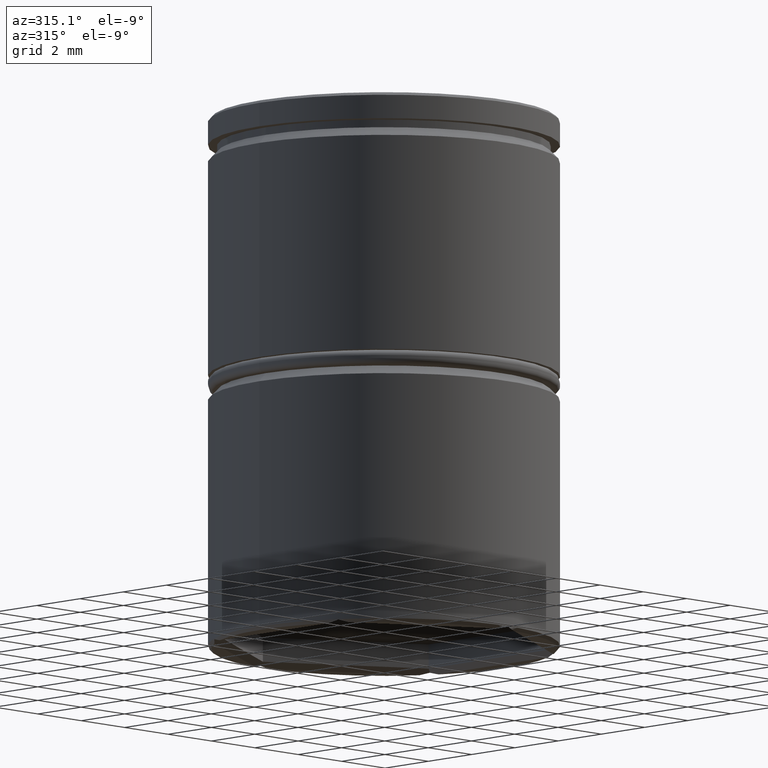
[diagram: clean part render]
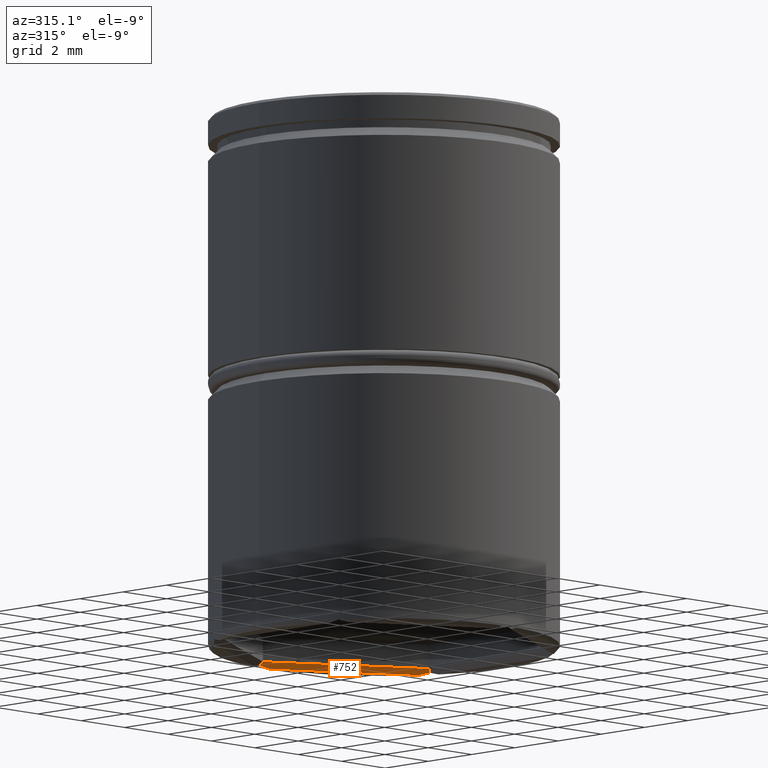
[diagram: same view with one face highlighted and labeled with its STEP entity id]
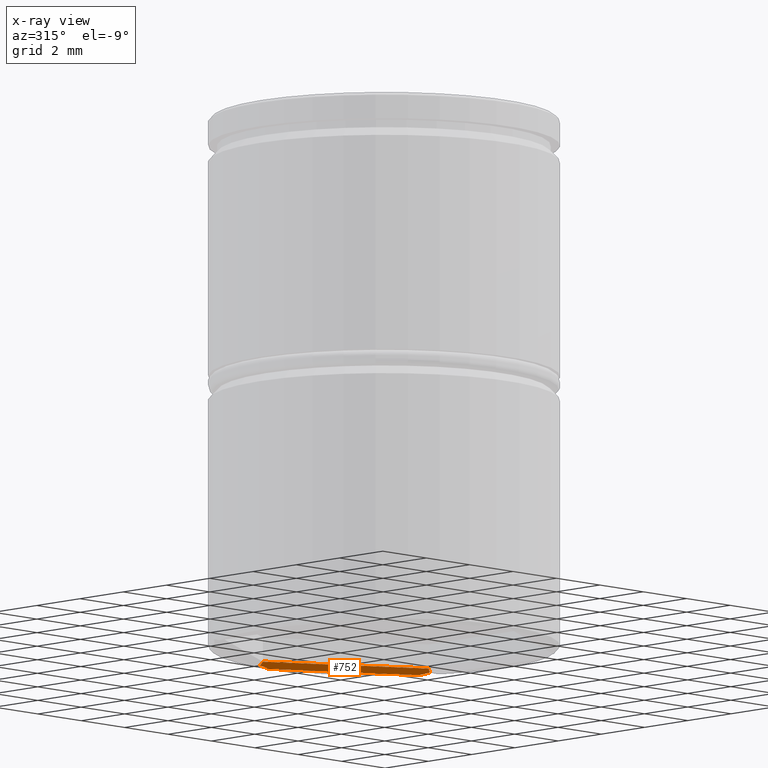
[diagram: x-ray of the same camera — body ghosted, the highlighted face saturated]
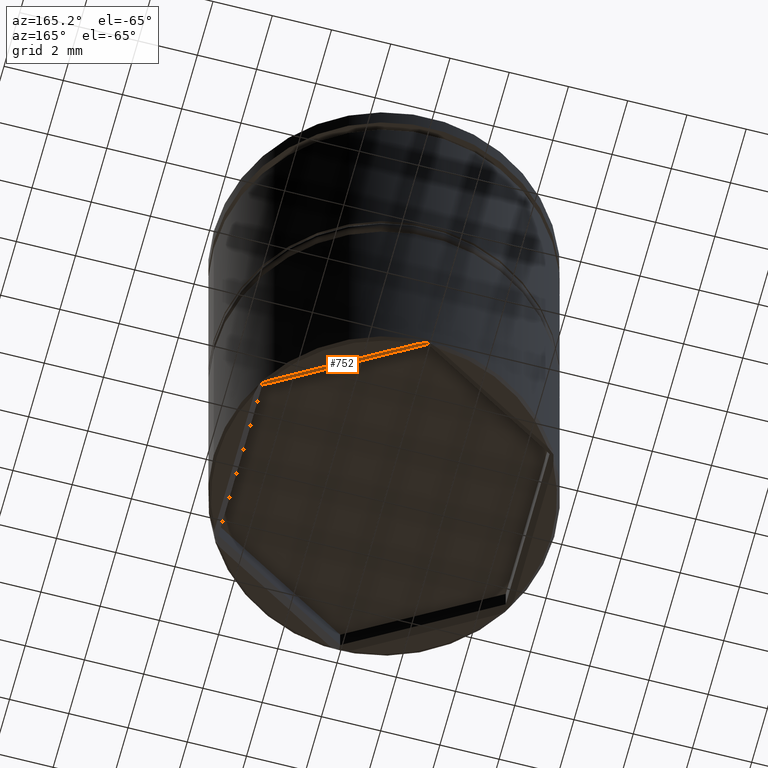
[diagram: same view with one face highlighted and labeled with its STEP entity id]
A machine part, auxiliary view. The second image highlights one B-rep face of the part: STEP entity #752.
The next image is the same camera in x-ray: the body ghosted, the highlighted face saturated — about 0% of this face is hidden behind the body in this view.
A second angle (auxiliary view) of the same face is appended — the face is thin or edge-on in the first view.
In plain terms, the highlighted planar face has unit normal (-0.3536, -0.6124, -0.7071).
Its self-contained STEP definition (entity closure, byte-faithful):
#11 = VECTOR ( 'NONE', #1179, 1000.000000000000114 ) ;
#19 = CARTESIAN_POINT ( 'NONE',  ( 4.885138570890573462, 2.947805070096408464, -17.44544336155335174 ) ) ;
#39 = CARTESIAN_POINT ( 'NONE',  ( 0.1103047906627722397, 5.704556638446649508, -17.44544336155335174 ) ) ;
#89 = VERTEX_POINT ( 'NONE', #720 ) ;
#110 = VERTEX_POINT ( 'NONE', #753 ) ;
#126 = DIRECTION ( 'NONE',  ( -0.3535533905932733423, -0.6123724356957940262, -0.7071067811865481278 ) ) ;
#146 = CARTESIAN_POINT ( 'NONE',  ( 4.965887281973972556, 2.867056359013010258, -17.41588728197397629 ) ) ;
#172 = VERTEX_POINT ( 'NONE', #211 ) ;
#186 = ORIENTED_EDGE ( 'NONE', *, *, #347, .F. ) ;
#192 = VECTOR ( 'NONE', #989, 1000.000000000000114 ) ;
#211 = CARTESIAN_POINT ( 'NONE',  ( 4.719310825749166050, 3.106542343179421906, -17.50000000000000000 ) ) ;
#214 = VERTEX_POINT ( 'NONE', #859 ) ;
#229 = VERTEX_POINT ( 'NONE', #549 ) ;
#252 = CARTESIAN_POINT ( 'NONE',  ( 0.2205779257049702291, 5.673302469441648732, -17.47351302474194767 ) ) ;
#292 = ORIENTED_EDGE ( 'NONE', *, *, #707, .F. ) ;
#293 = LINE ( 'NONE', #711, #1330 ) ;
#342 = ORIENTED_EDGE ( 'NONE', *, *, #583, .T. ) ;
#345 = CARTESIAN_POINT ( 'NONE',  ( 4.719310825749166050, 3.106542343179421906, -17.50000000000000000 ) ) ;
#347 = EDGE_CURVE ( 'NONE', #172, #110, #567, .T. ) ;
#362 = CARTESIAN_POINT ( 'NONE',  ( 0.3306891742508298315, 5.640314235043404345, -17.50000000000000000 ) ) ;
#366 = EDGE_CURVE ( 'NONE', #714, #89, #767, .T. ) ;
#373 = EDGE_CURVE ( 'NONE', #110, #229, #1370, .T. ) ;
#388 = CARTESIAN_POINT ( 'NONE',  ( 8.076211051402311635E-16, 5.734112718026022293, -17.41588728197397629 ) ) ;
#408 = DIRECTION ( 'NONE',  ( 2.542330217763760374E-15, 0.7559289460184543952, -0.6546536707079771977 ) ) ;
#474 = EDGE_LOOP ( 'NONE', ( #186, #844, #292, #777, #342, #1277 ) ) ;
#489 = VECTOR ( 'NONE', #899, 1000.000000000000000 ) ;
#534 = AXIS2_PLACEMENT_3D ( 'NONE', #1077, #126, #557 ) ;
#549 = CARTESIAN_POINT ( 'NONE',  ( 8.076211051402311635E-16, 5.734112718026022293, -17.41588728197397629 ) ) ;
#557 = DIRECTION ( 'NONE',  ( -0.8660254037844387076, 0.4999999999999998335, 0.000000000000000000 ) ) ;
#567 = LINE ( 'NONE', #1075, #489 ) ;
#583 = EDGE_CURVE ( 'NONE', #714, #229, #293, .T. ) ;
#649 = B_SPLINE_CURVE_WITH_KNOTS ( 'NONE', 3,
 ( #146, #19, #795, #345 ),
 .UNSPECIFIED., .F., .F.,
 ( 4, 4 ),
 ( 0.000000000000000000, 0.0003538762985991915811 ),
 .UNSPECIFIED. ) ;
#652 = PLANE ( 'NONE',  #534 ) ;
#659 = CARTESIAN_POINT ( 'NONE',  ( 4.849999999999996980, 2.800148805569681709, -17.30000000000000071 ) ) ;
#707 = EDGE_CURVE ( 'NONE', #89, #214, #861, .T. ) ;
#711 = CARTESIAN_POINT ( 'NONE',  ( 0.000000000000000000, 5.600297611139363418, -17.30000000000000071 ) ) ;
#714 = VERTEX_POINT ( 'NONE', #1185 ) ;
#720 = CARTESIAN_POINT ( 'NONE',  ( 4.849999999999996980, 2.800148805569681265, -17.30000000000000071 ) ) ;
#752 = ADVANCED_FACE ( 'NONE', ( #1296 ), #652, .T. ) ;
#753 = CARTESIAN_POINT ( 'NONE',  ( 0.3306891742508298315, 5.640314235043404345, -17.50000000000000000 ) ) ;
#767 = LINE ( 'NONE', #659, #192 ) ;
#777 = ORIENTED_EDGE ( 'NONE', *, *, #366, .F. ) ;
#795 = CARTESIAN_POINT ( 'NONE',  ( 4.802935099036972133, 3.027677321895406504, -17.47351302474194767 ) ) ;
#844 = ORIENTED_EDGE ( 'NONE', *, *, #1258, .F. ) ;
#859 = CARTESIAN_POINT ( 'NONE',  ( 4.965887281973972556, 2.867056359013010258, -17.41588728197397629 ) ) ;
#861 = LINE ( 'NONE', #1311, #11 ) ;
#899 = DIRECTION ( 'NONE',  ( -0.8660254037844387076, 0.4999999999999998335, 0.000000000000000000 ) ) ;
#989 = DIRECTION ( 'NONE',  ( 0.8660254037844387076, -0.4999999999999998335, 0.000000000000000000 ) ) ;
#1075 = CARTESIAN_POINT ( 'NONE',  ( 0.1000000000000011713, 5.773502691896253758, -17.50000000000000000 ) ) ;
#1077 = CARTESIAN_POINT ( 'NONE',  ( 0.000000000000000000, 5.600297611139363418, -17.30000000000000071 ) ) ;
#1179 = DIRECTION ( 'NONE',  ( 0.6546536707079768647, 0.3779644730092283633, -0.6546536707079767536 ) ) ;
#1185 = CARTESIAN_POINT ( 'NONE',  ( 0.000000000000000000, 5.600297611139363418, -17.30000000000000071 ) ) ;
#1258 = EDGE_CURVE ( 'NONE', #214, #172, #649, .T. ) ;
#1277 = ORIENTED_EDGE ( 'NONE', *, *, #373, .F. ) ;
#1296 = FACE_OUTER_BOUND ( 'NONE', #474, .T. ) ;
#1311 = CARTESIAN_POINT ( 'NONE',  ( 4.849999999999996980, 2.800148805569681265, -17.30000000000000071 ) ) ;
#1330 = VECTOR ( 'NONE', #408, 1000.000000000000227 ) ;
#1370 = B_SPLINE_CURVE_WITH_KNOTS ( 'NONE', 3,
 ( #362, #252, #39, #388 ),
 .UNSPECIFIED., .F., .F.,
 ( 4, 4 ),
 ( 0.000000000000000000, 0.0003538762985991874069 ),
 .UNSPECIFIED. ) ;